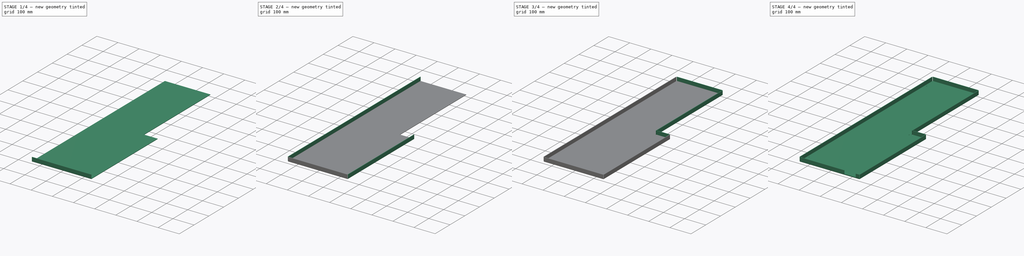
[diagram: build sequence overview — one tinted view per stage of 4, left to right]
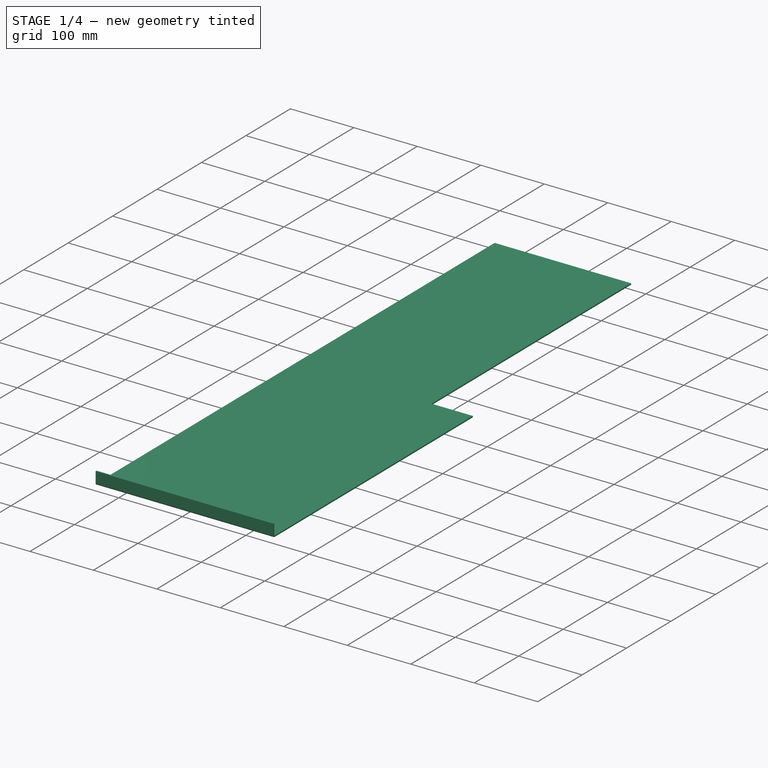
[diagram: stage 1 of 4 — iso view after this stage's code; geometry added in this stage tinted green]
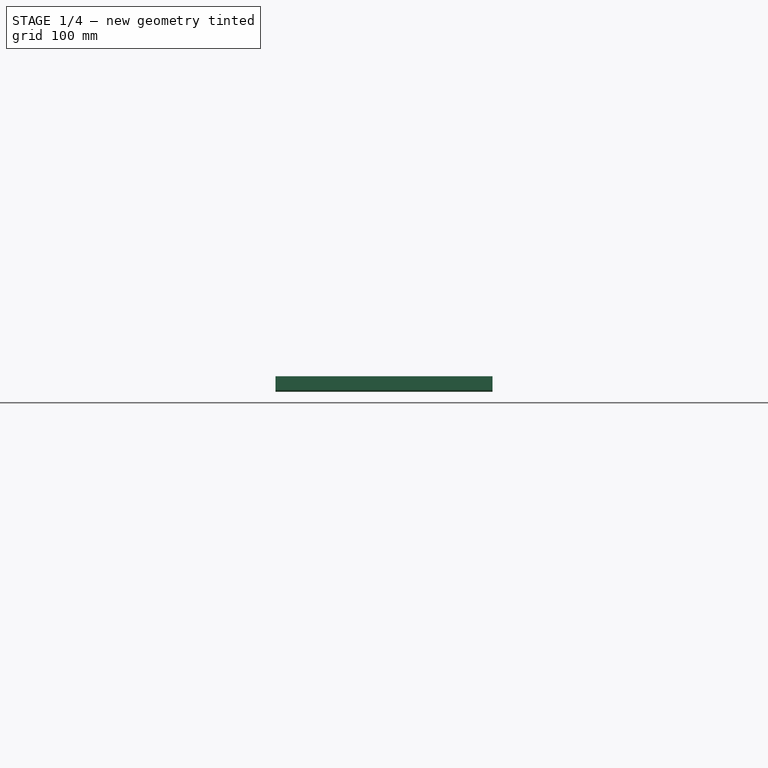
[diagram: stage 1 of 4 — front view after this stage's code; geometry added in this stage tinted green]
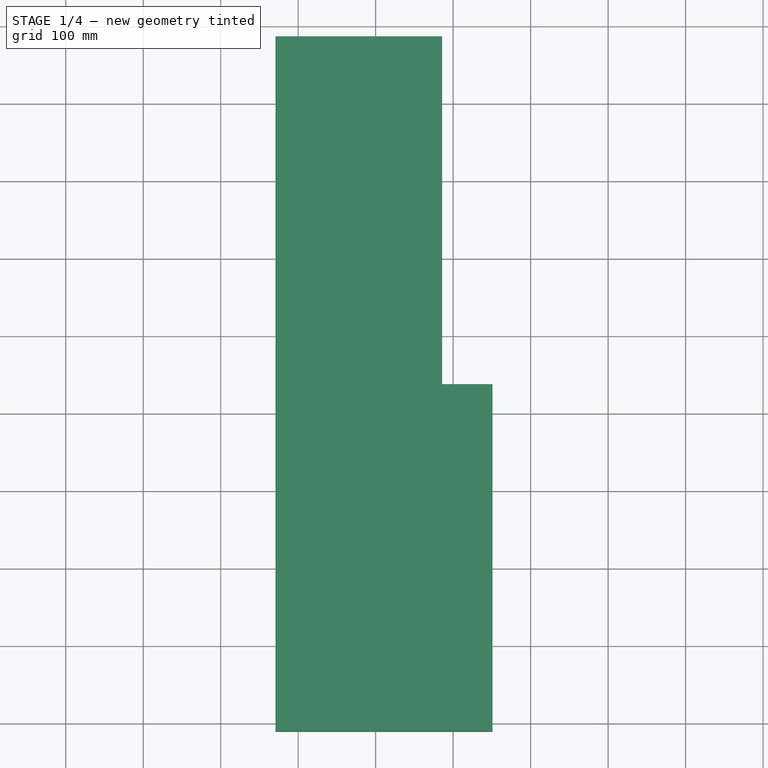
[diagram: stage 1 of 4 — top view after this stage's code; geometry added in this stage tinted green]
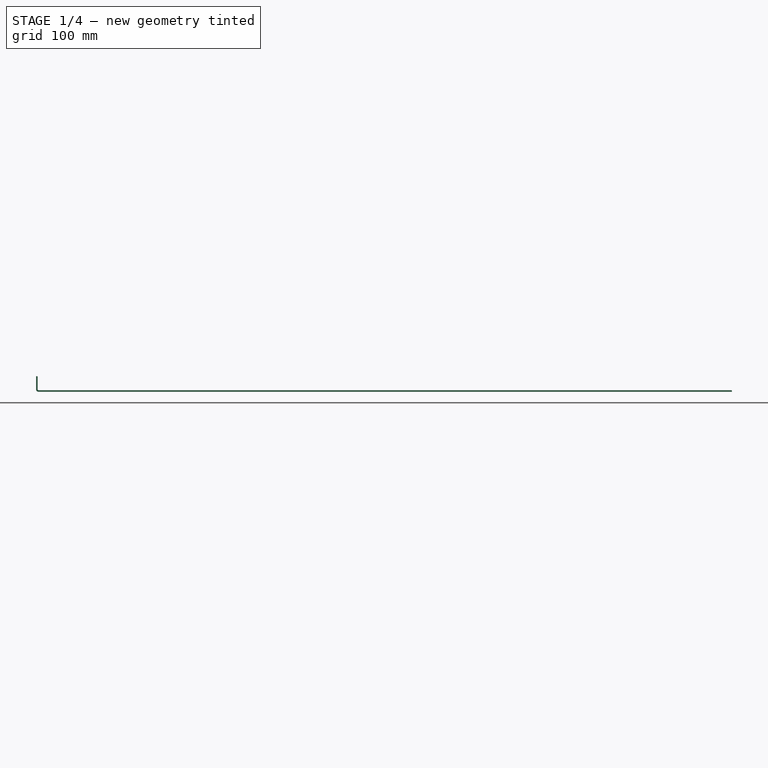
[diagram: stage 1 of 4 — right view after this stage's code; geometry added in this stage tinted green]
FCSTD DOCUMENT  (FreeCAD 0.16R6698 (Git))
Label: Bottom_Bended_Coating
License: All rights reserved
LicenseURL: http://en.wikipedia.org/wiki/All_rights_reserved
objects: Part::FeaturePython×6, Sketcher::SketchObject×3, PartDesign::Pocket×2, PartDesign::Pad×1
note: 15 computed .brp shape members not serialized (recipe doc carries the construction recipe); baked Part::Feature solids carry a one-line shape summary decoded from their .brp

FEATURE [Sketcher::SketchObject] Sketch
  sketch-geometry (6):
    g0: LineSegment StartX=-129.237 StartY=487.504 StartZ=0 EndX=85.7632 EndY=487.504 EndZ=0
    g1: LineSegment StartX=85.7632 StartY=487.504 StartZ=0 EndX=85.7632 EndY=38.5039 EndZ=0
    g2: LineSegment StartX=150.763 StartY=-407.496 StartZ=0 EndX=-129.237 EndY=-407.496 EndZ=0
    g3: LineSegment StartX=-129.237 StartY=-407.496 StartZ=0 EndX=-129.237 EndY=487.504 EndZ=0
    g4: LineSegment StartX=150.763 StartY=-407.496 StartZ=0 EndX=150.763 EndY=38.5039 EndZ=0
    g5: LineSegment StartX=150.763 StartY=38.5039 StartZ=0 EndX=85.7632 EndY=38.5039 EndZ=0
  constraints (17):
    c: Coincident(g0,g1)
    c: Coincident(g2,g3)
    c: Coincident(g3,g0)
    c: Horizontal(g0)
    c: Horizontal(g2)
    c: Vertical(g1)
    c: Vertical(g3)
    c: Coincident(g4,g5)
    c: Horizontal(g5)
    c: Vertical(g4)
    c: PointOnObject(g1,g5)
    c: Coincident(g2,g4)
    c: DistanceX(g2,g2) = 280
    c: Coincident(g5,g1)
    c: DistanceY(g3,g3) = 895
    c: DistanceY(g4,g4) = 446
    c: DistanceX(g0,g0) = 215
FEATURE [PartDesign::Pad] Pad
  Length = 2
  Length2 = 100
  Sketch = -> Sketch
  Type = 0
FEATURE [Part::FeaturePython] Bend  # WARN: FeaturePython — macro-defined, semantics opaque (R4)
  angle = 90
  baseObject = -> Pad [Face1]
  gap1 = 0
  gap2 = 0
  invert = false
  length = 17
  radius = 1
  reliefd = 1
  reliefw = 0.5
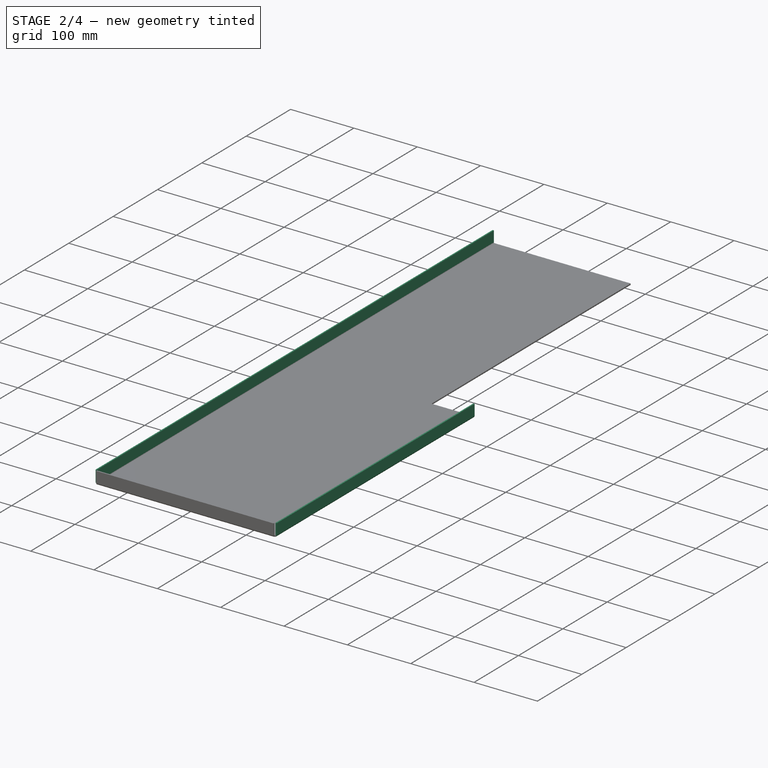
[diagram: stage 2 of 4 — iso view after this stage's code; geometry added in this stage tinted green]
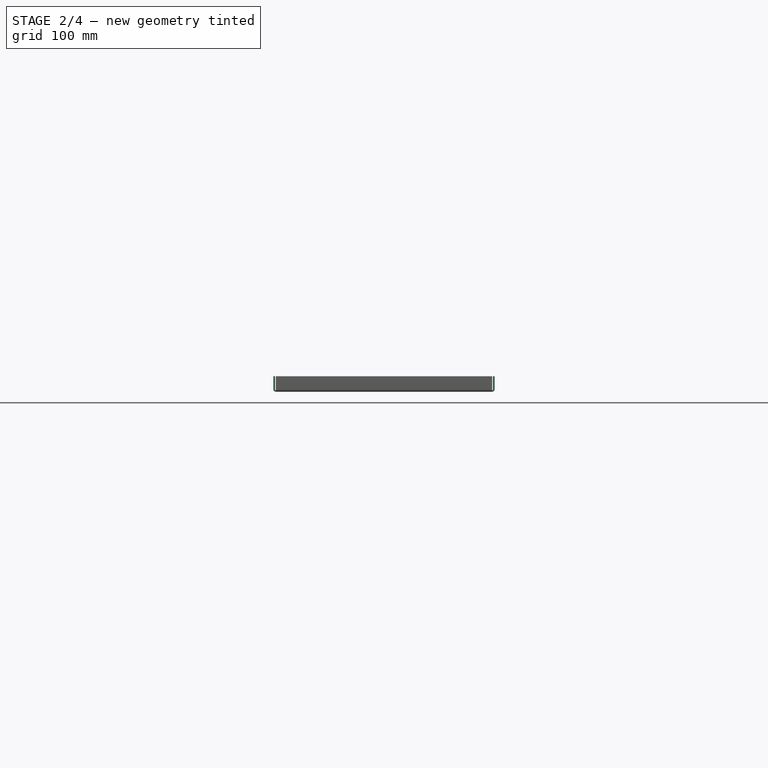
[diagram: stage 2 of 4 — front view after this stage's code; geometry added in this stage tinted green]
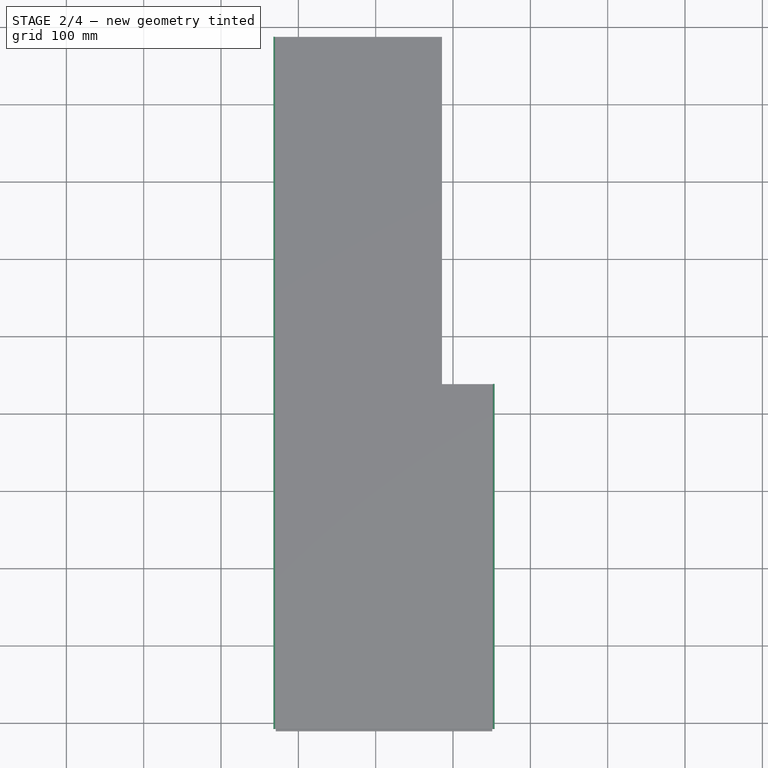
[diagram: stage 2 of 4 — top view after this stage's code; geometry added in this stage tinted green]
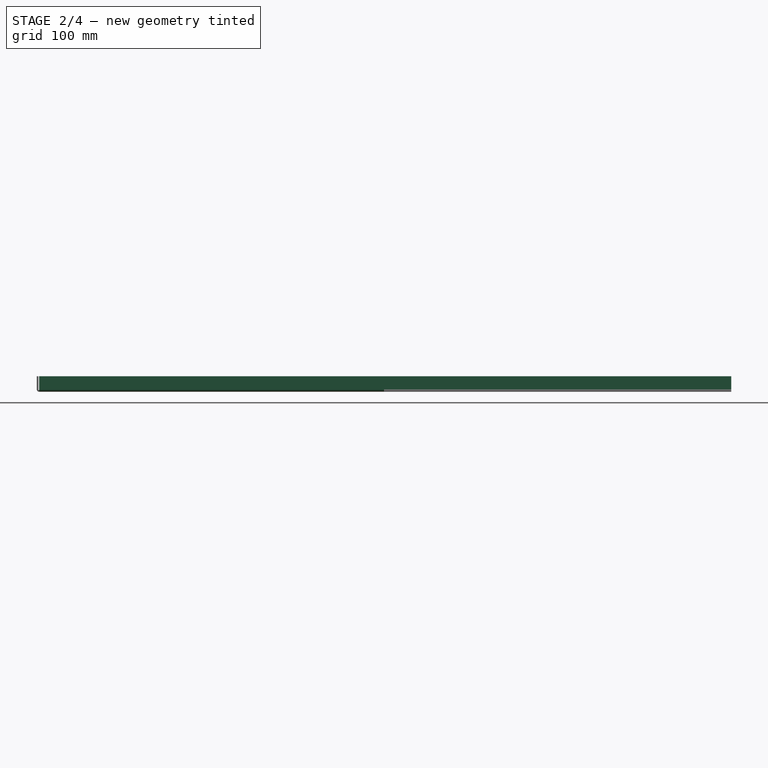
[diagram: stage 2 of 4 — right view after this stage's code; geometry added in this stage tinted green]
FEATURE [Part::FeaturePython] Bend001  # WARN: FeaturePython — macro-defined, semantics opaque (R4)
  angle = 90
  baseObject = -> Bend [Face10]
  gap1 = 0
  gap2 = 0
  invert = false
  length = 17
  radius = 1
  reliefd = 1
  reliefw = 0.5
FEATURE [Part::FeaturePython] Bend002  # WARN: FeaturePython — macro-defined, semantics opaque (R4)
  angle = 90
  baseObject = -> Bend001 [Face18]
  gap1 = 0
  gap2 = 0
  invert = false
  length = 17
  radius = 1
  reliefd = 1
  reliefw = 0.5
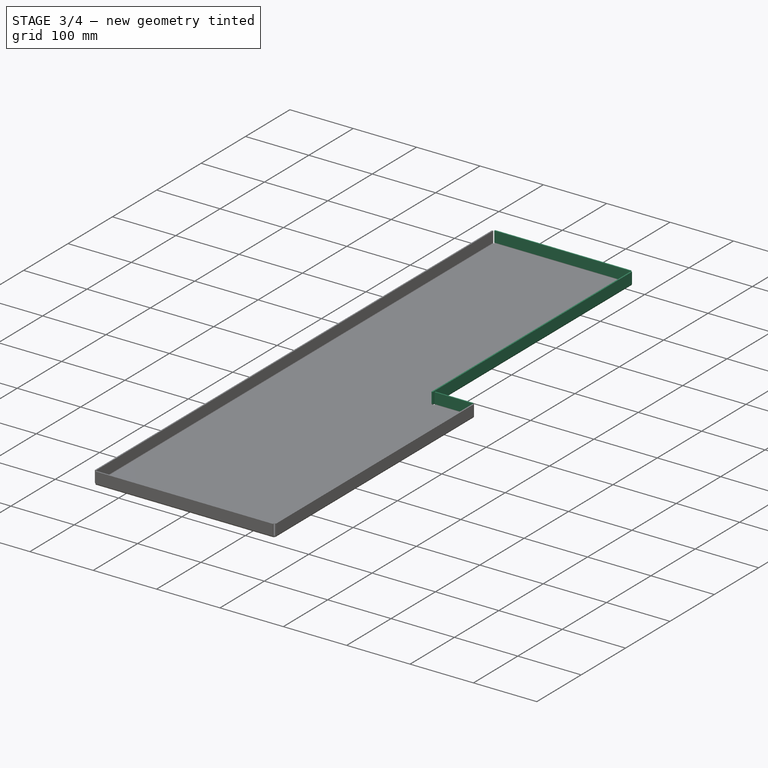
[diagram: stage 3 of 4 — iso view after this stage's code; geometry added in this stage tinted green]
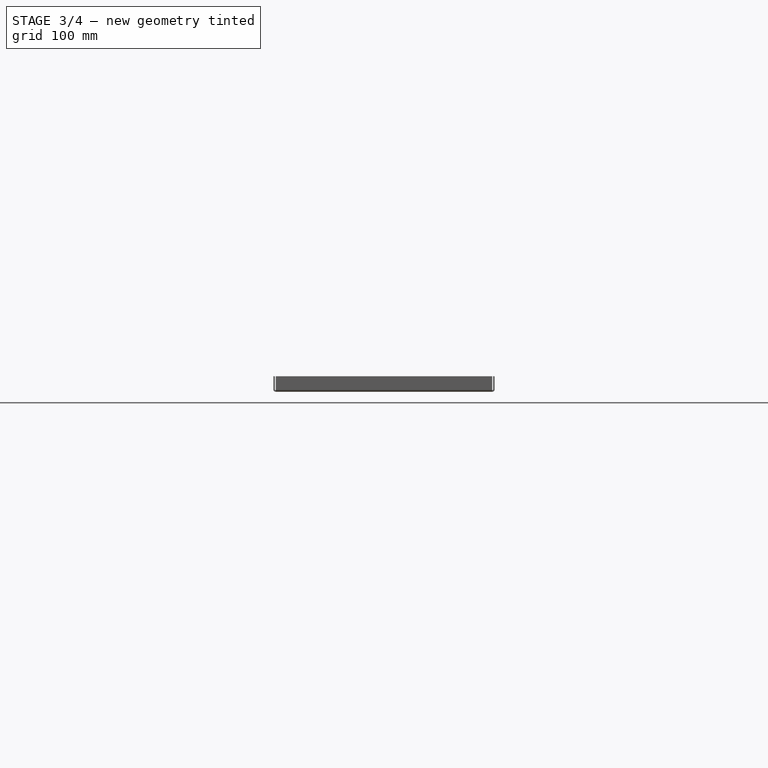
[diagram: stage 3 of 4 — front view after this stage's code; geometry added in this stage tinted green]
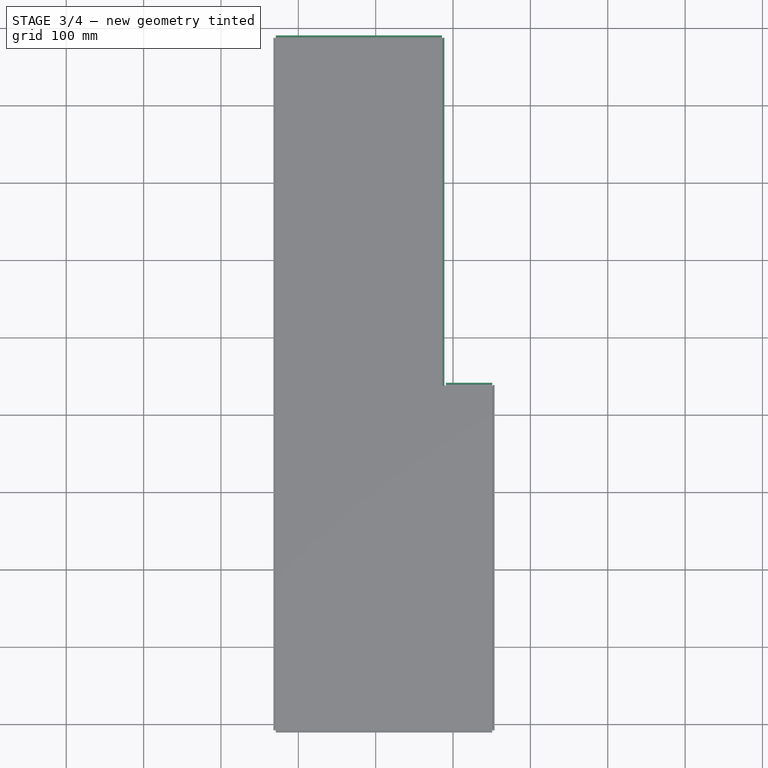
[diagram: stage 3 of 4 — top view after this stage's code; geometry added in this stage tinted green]
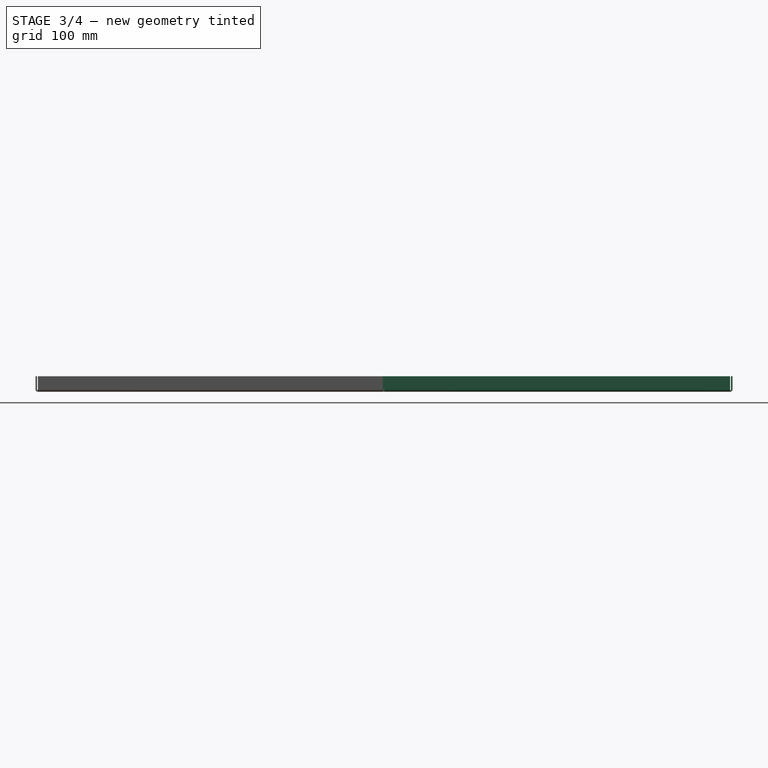
[diagram: stage 3 of 4 — right view after this stage's code; geometry added in this stage tinted green]
FEATURE [Part::FeaturePython] Bend003  # WARN: FeaturePython — macro-defined, semantics opaque (R4)
  angle = 90
  baseObject = -> Bend002 [Face18]
  gap1 = 0
  gap2 = 5
  invert = false
  length = 17
  radius = 1
  reliefd = 1
  reliefw = 0.5
FEATURE [Part::FeaturePython] Bend004  # WARN: FeaturePython — macro-defined, semantics opaque (R4)
  angle = 90
  baseObject = -> Bend003 [Face19]
  gap1 = 0
  gap2 = 0
  invert = false
  length = 17
  radius = 1
  reliefd = 1
  reliefw = 0.5
FEATURE [Part::FeaturePython] Bend005  # WARN: FeaturePython — macro-defined, semantics opaque (R4)
  angle = 90
  baseObject = -> Bend004 [Face10]
  gap1 = 0
  gap2 = 0
  invert = false
  length = 17
  radius = 1
  reliefd = 1
  reliefw = 0.5
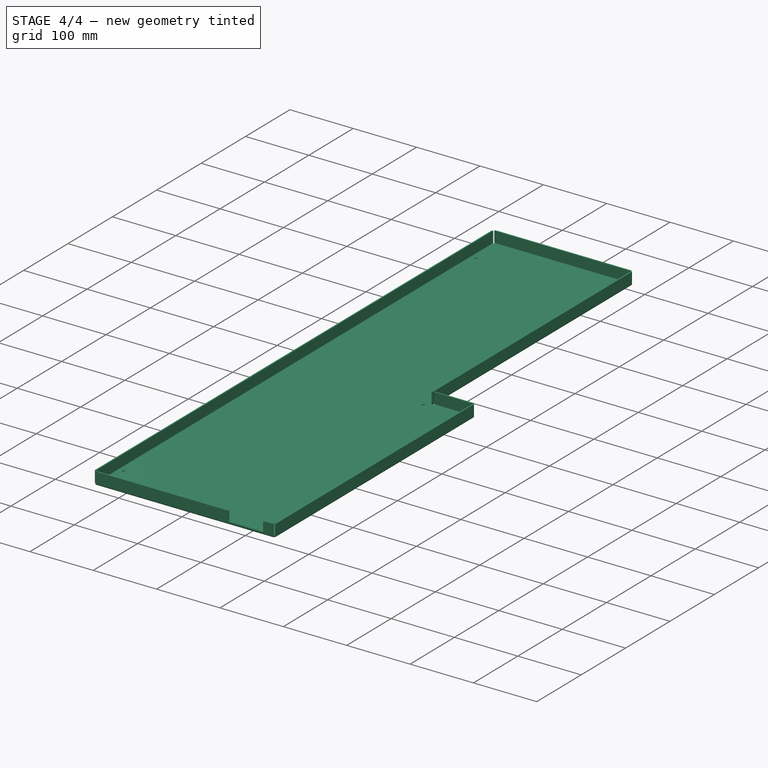
[diagram: stage 4 of 4 — iso view after this stage's code; geometry added in this stage tinted green]
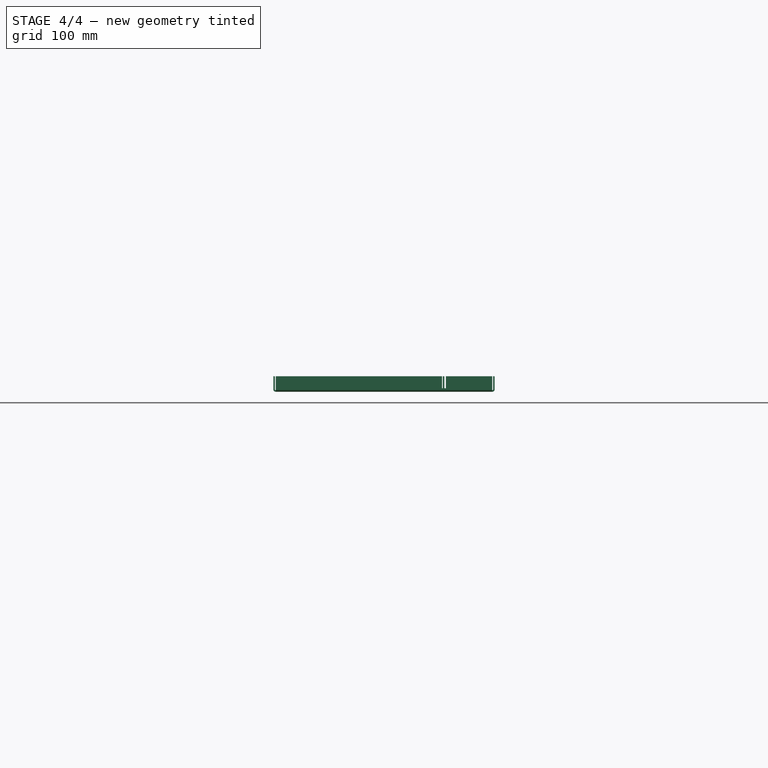
[diagram: stage 4 of 4 — front view after this stage's code; geometry added in this stage tinted green]
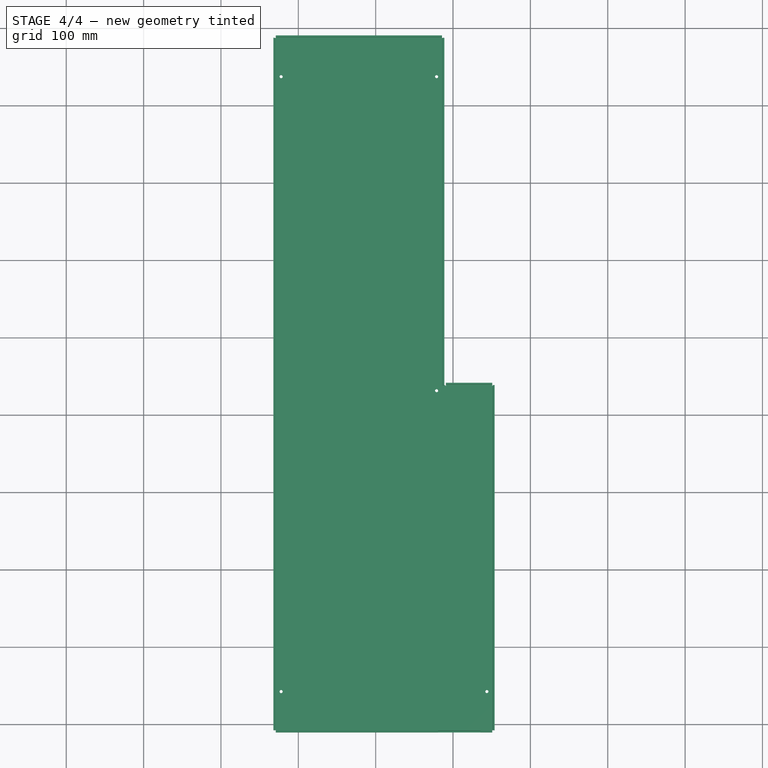
[diagram: stage 4 of 4 — top view after this stage's code; geometry added in this stage tinted green]
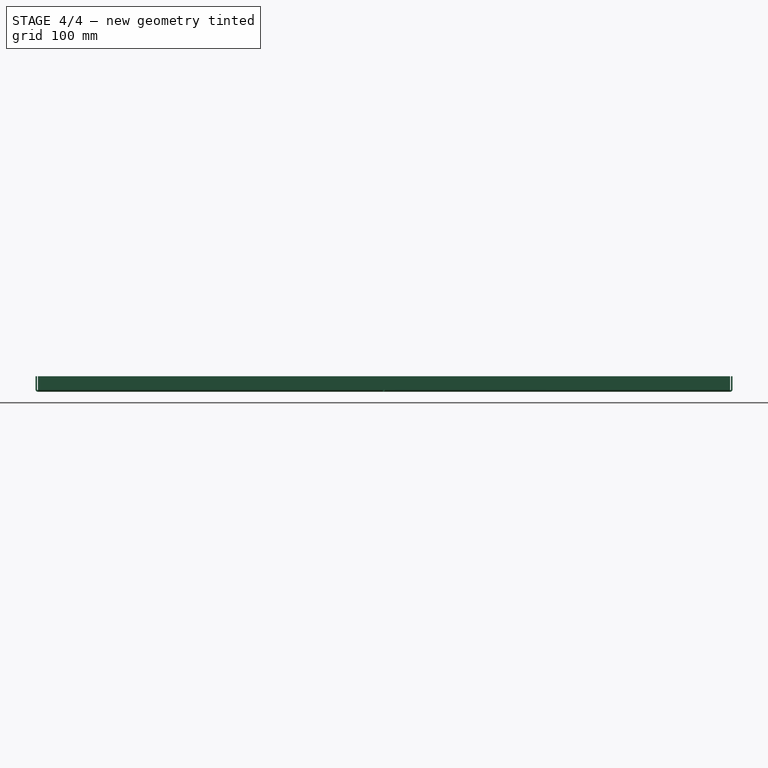
[diagram: stage 4 of 4 — right view after this stage's code; geometry added in this stage tinted green]
FEATURE [Sketcher::SketchObject] Sketch001
  Placement = pos=(0,-410.496,0) rot=(1,0,0;1.5708rad)
  Support = -> Bend005 [Face40]
  sketch-geometry (4):
    g0: LineSegment StartX=135.537 StartY=4.56169 StartZ=0 EndX=80.5368 EndY=4.56169 EndZ=0
    g1: LineSegment StartX=80.5368 StartY=4.56169 StartZ=0 EndX=80.5368 EndY=25.1847 EndZ=0
    g2: LineSegment StartX=80.5368 StartY=25.1847 StartZ=0 EndX=135.537 EndY=25.1847 EndZ=0
    g3: LineSegment StartX=135.537 StartY=25.1847 StartZ=0 EndX=135.537 EndY=4.56169 EndZ=0
  constraints (9):
    c: Coincident(g0,g1)
    c: Coincident(g1,g2)
    c: Coincident(g2,g3)
    c: Coincident(g3,g0)
    c: Horizontal(g0)
    c: Horizontal(g2)
    c: Vertical(g1)
    c: Vertical(g3)
    c: DistanceX(g2,g2) = 55
FEATURE [PartDesign::Pocket] Pocket
  Length = 5
  Sketch = -> Sketch001
  Type = 0
FEATURE [Sketcher::SketchObject] Sketch002
  ExternalGeometry = -> [Pocket]
  Placement = pos=(0,0,0) rot=(1,0,0;3.14159rad)
  Support = -> Pocket [Face12]
  sketch-geometry (5):
    g0: Circle CenterX=-122.237 CenterY=357.496 CenterZ=0 NormalX=0 NormalY=0 NormalZ=1 Radius=2
    g1: Circle CenterX=143.763 CenterY=357.496 CenterZ=0 NormalX=0 NormalY=0 NormalZ=1 Radius=2
    g2: Circle CenterX=-122.237 CenterY=-437.504 CenterZ=0 NormalX=0 NormalY=0 NormalZ=1 Radius=2
    g3: Circle CenterX=78.7632 CenterY=-437.504 CenterZ=0 NormalX=0 NormalY=0 NormalZ=1 Radius=2
    g4: Circle CenterX=78.7632 CenterY=-31.5039 CenterZ=0 NormalX=0 NormalY=0 NormalZ=1 Radius=2
  constraints (15):
    c: Radius(g0) = 2
    c: Equal(g0,g1)
    c: Equal(g0,g4)
    c: Equal(g0,g3)
    c: Equal(g0,g2)
    c: DistanceY(g1,g-5) = 50
    c: DistanceX(g1,g-5) = 7
    c: DistanceX(g-3,g0) = 7
    c: DistanceY(g0,g-3) = 50
    c: DistanceX(g-3,g2) = 7
    c: DistanceY(g-3,g2) = 50
    c: DistanceX(g3,g-4) = 7
    c: DistanceY(g-4,g3) = 50
    c: DistanceY(g-4,g4) = 7
    c: DistanceX(g4,g-4) = 7
FEATURE [PartDesign::Pocket] Pocket001
  Length = 5
  Sketch = -> Sketch002
  Type = 0
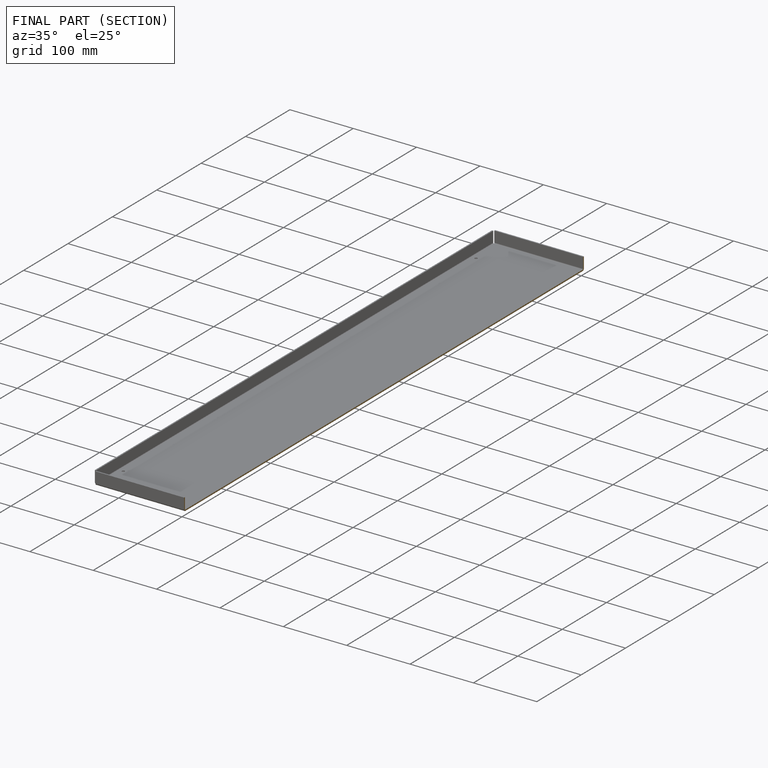
[diagram: finished part — half-section view (interior)]
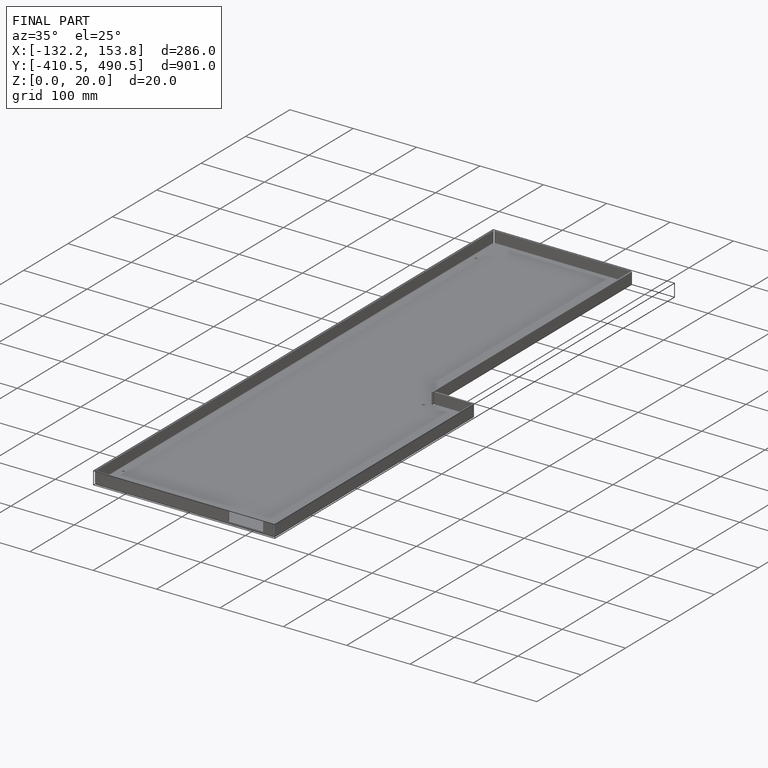
[diagram: finished part — iso view with bounding-box wireframe]
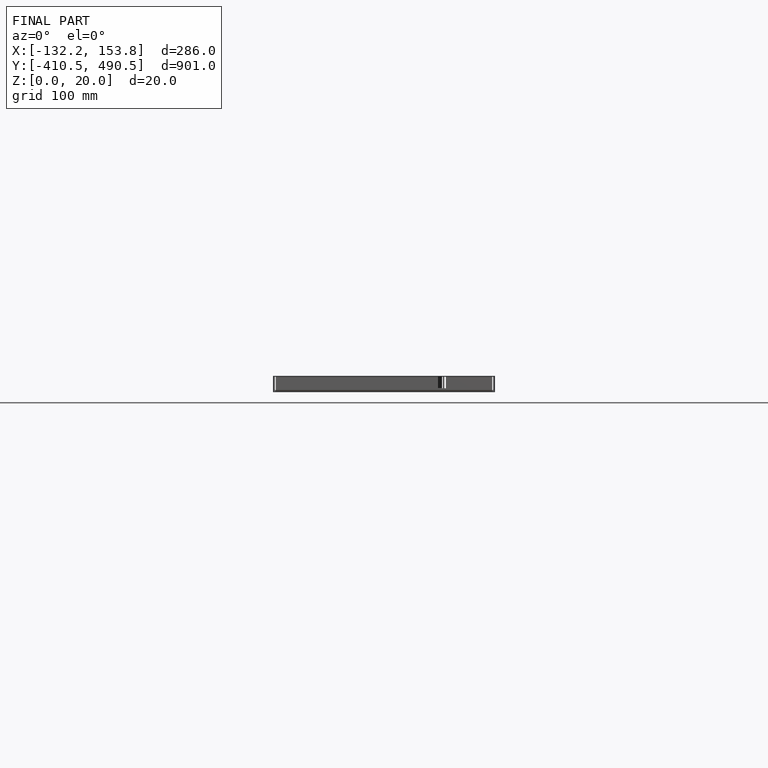
[diagram: finished part — front view with bounding-box wireframe]
